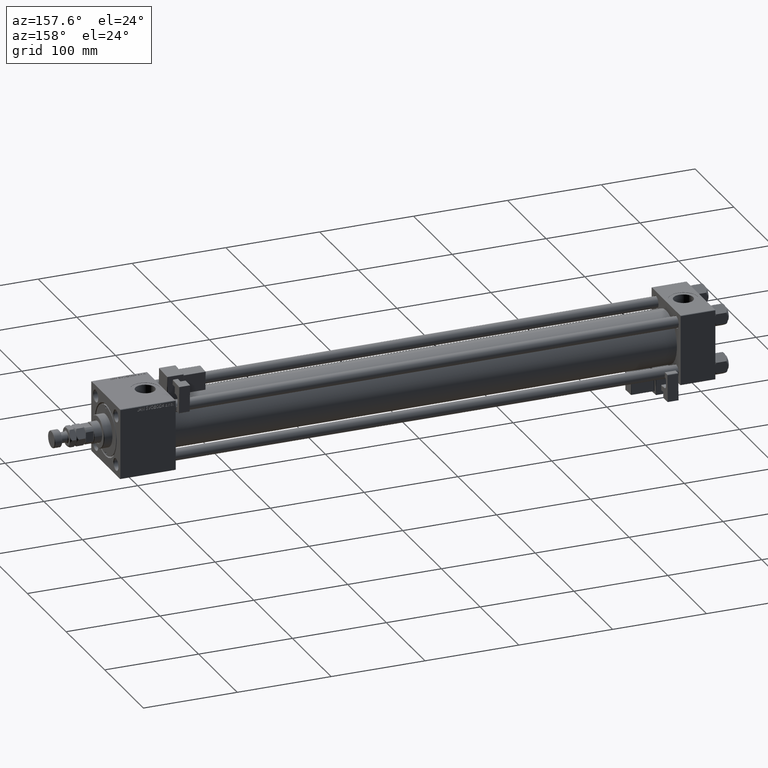
[diagram: clean part render]
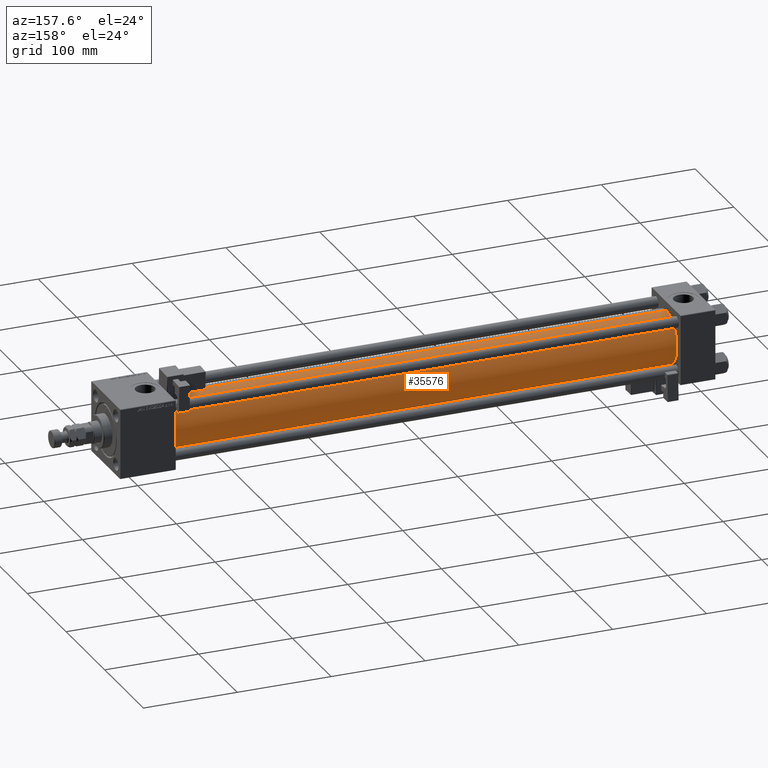
[diagram: same view with one face highlighted and labeled with its STEP entity id]
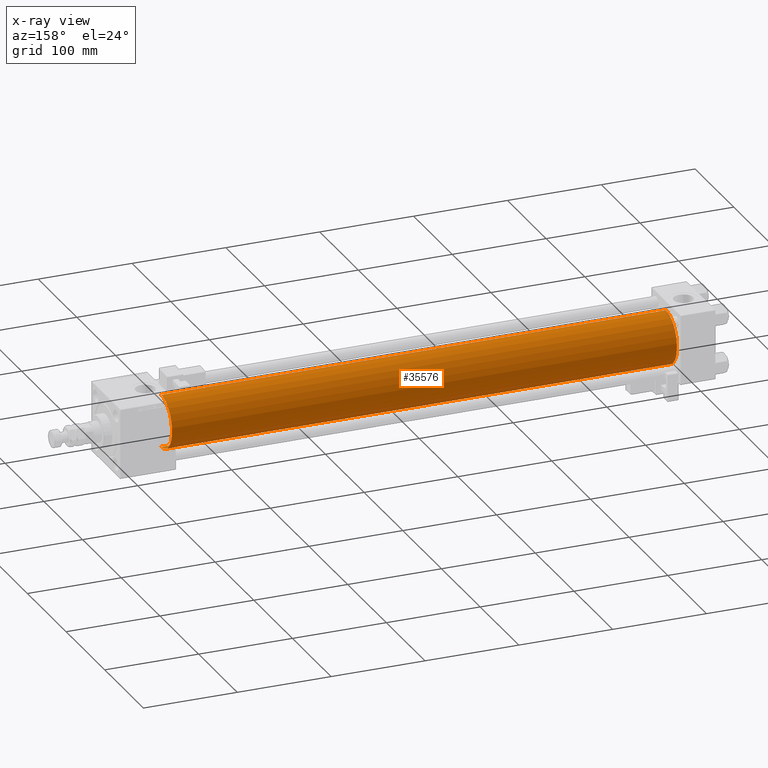
[diagram: x-ray of the same camera — body ghosted, the highlighted face saturated]
A machine part, auxiliary view. The second image highlights one B-rep face of the part: STEP entity #35576.
The next image is the same camera in x-ray: the body ghosted, the highlighted face saturated — about 0% of this face is hidden behind the body in this view.
In plain terms, the highlighted cylindrical surface (edge-blend (fillet) strip) has radius 28 mm, axis along (-1, -0, -0).
Its self-contained STEP definition (entity closure, byte-faithful):
#36 = VERTEX_POINT ( 'NONE', #5833 ) ;
#367 = CARTESIAN_POINT ( 'NONE',  ( 575.0000000000001137, 8.269258236473784371E-16, -28.00000000000000000 ) ) ;
#3402 = CARTESIAN_POINT ( 'NONE',  ( 575.0000000000001137, -2.602085213965210642E-15, 28.00000000000000000 ) ) ;
#3605 = DIRECTION ( 'NONE',  ( 0.000000000000000000, 0.000000000000000000, 1.000000000000000000 ) ) ;
#5423 = CIRCLE ( 'NONE', #52686, 28.00000000000000000 ) ;
#5833 = CARTESIAN_POINT ( 'NONE',  ( 37.00000000000003553, -2.602085213965210642E-15, 28.00000000000000000 ) ) ;
#6048 = DIRECTION ( 'NONE',  ( 0.000000000000000000, 0.000000000000000000, -1.000000000000000000 ) ) ;
#7434 = CYLINDRICAL_SURFACE ( 'NONE', #19977, 28.00000000000000000 ) ;
#8026 = EDGE_CURVE ( 'NONE', #37383, #42112, #5423, .T. ) ;
#8961 = DIRECTION ( 'NONE',  ( 0.000000000000000000, 0.000000000000000000, 1.000000000000000000 ) ) ;
#9776 = CARTESIAN_POINT ( 'NONE',  ( 37.00000000000003553, -2.602085213965210642E-15, 0.000000000000000000 ) ) ;
#11822 = CARTESIAN_POINT ( 'NONE',  ( 575.0000000000001137, -2.602085213965210642E-15, 0.000000000000000000 ) ) ;
#13752 = ORIENTED_EDGE ( 'NONE', *, *, #38319, .F. ) ;
#16612 = VECTOR ( 'NONE', #36311, 1000.000000000000000 ) ;
#17108 = VERTEX_POINT ( 'NONE', #27437 ) ;
#18501 = FACE_OUTER_BOUND ( 'NONE', #36521, .T. ) ;
#19977 = AXIS2_PLACEMENT_3D ( 'NONE', #11822, #23888, #3605 ) ;
#22569 = AXIS2_PLACEMENT_3D ( 'NONE', #9776, #46499, #8961 ) ;
#23048 = DIRECTION ( 'NONE',  ( 1.000000000000000000, 0.000000000000000000, 0.000000000000000000 ) ) ;
#23888 = DIRECTION ( 'NONE',  ( -1.000000000000000000, -0.000000000000000000, -0.000000000000000000 ) ) ;
#24649 = ORIENTED_EDGE ( 'NONE', *, *, #8026, .F. ) ;
#26612 = CARTESIAN_POINT ( 'NONE',  ( 575.0000000000001137, -2.602085213965210642E-15, 0.000000000000000000 ) ) ;
#27437 = CARTESIAN_POINT ( 'NONE',  ( 37.00000000000003553, 8.269258236473784371E-16, -28.00000000000000000 ) ) ;
#29769 = VECTOR ( 'NONE', #45150, 1000.000000000000000 ) ;
#33273 = LINE ( 'NONE', #3402, #16612 ) ;
#34707 = ORIENTED_EDGE ( 'NONE', *, *, #39365, .T. ) ;
#34843 = CIRCLE ( 'NONE', #22569, 28.00000000000000000 ) ;
#35576 = ADVANCED_FACE ( 'NONE', ( #18501 ), #7434, .T. ) ;
#36311 = DIRECTION ( 'NONE',  ( -1.000000000000000000, -0.000000000000000000, -0.000000000000000000 ) ) ;
#36521 = EDGE_LOOP ( 'NONE', ( #24649, #34707, #48988, #13752 ) ) ;
#37383 = VERTEX_POINT ( 'NONE', #367 ) ;
#38028 = CARTESIAN_POINT ( 'NONE',  ( 575.0000000000001137, -2.602085213965210642E-15, 28.00000000000000000 ) ) ;
#38319 = EDGE_CURVE ( 'NONE', #42112, #36, #33273, .T. ) ;
#39365 = EDGE_CURVE ( 'NONE', #37383, #17108, #40515, .T. ) ;
#40515 = LINE ( 'NONE', #40784, #29769 ) ;
#40784 = CARTESIAN_POINT ( 'NONE',  ( 575.0000000000001137, 8.269258236473784371E-16, -28.00000000000000000 ) ) ;
#42112 = VERTEX_POINT ( 'NONE', #38028 ) ;
#45150 = DIRECTION ( 'NONE',  ( -1.000000000000000000, -0.000000000000000000, -0.000000000000000000 ) ) ;
#46499 = DIRECTION ( 'NONE',  ( 1.000000000000000000, -0.000000000000000000, 0.000000000000000000 ) ) ;
#48217 = EDGE_CURVE ( 'NONE', #17108, #36, #34843, .T. ) ;
#48988 = ORIENTED_EDGE ( 'NONE', *, *, #48217, .T. ) ;
#52686 = AXIS2_PLACEMENT_3D ( 'NONE', #26612, #23048, #6048 ) ;